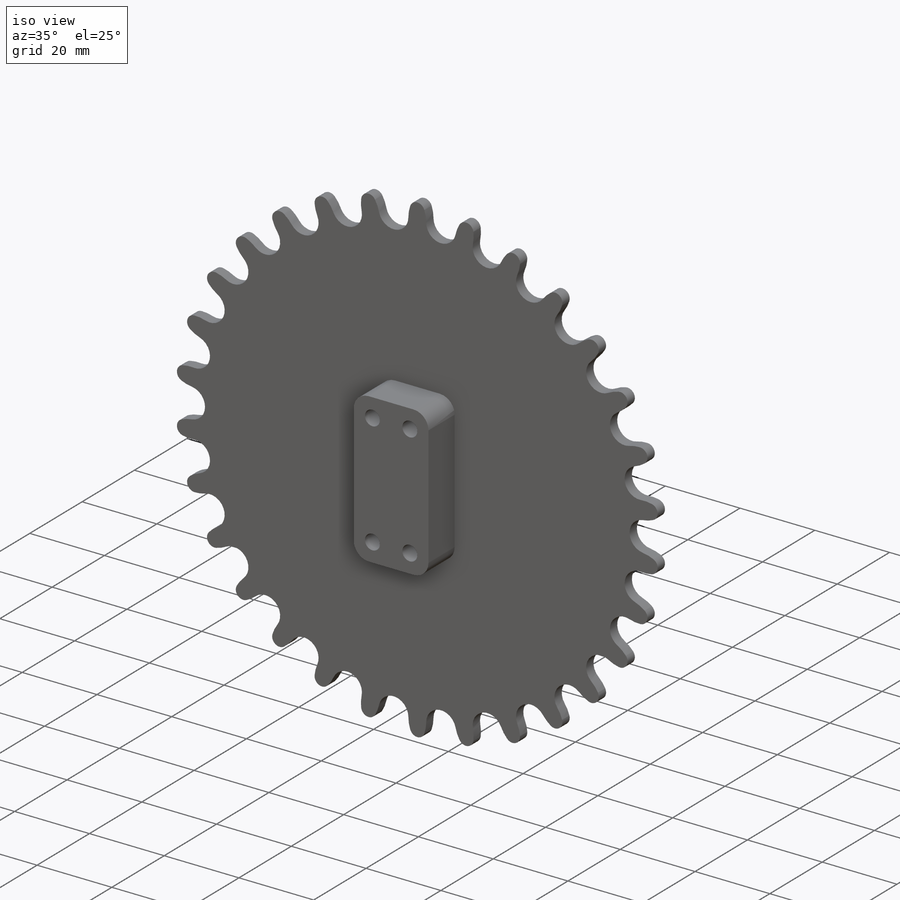
[diagram: iso view]
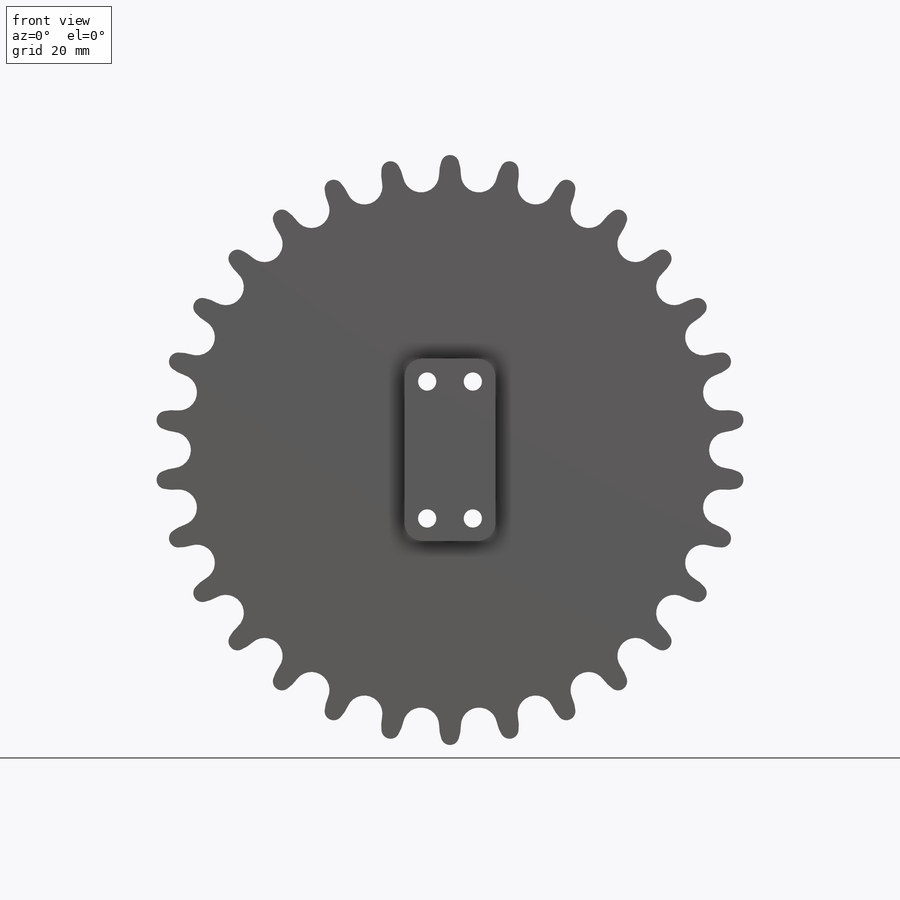
[diagram: front view]
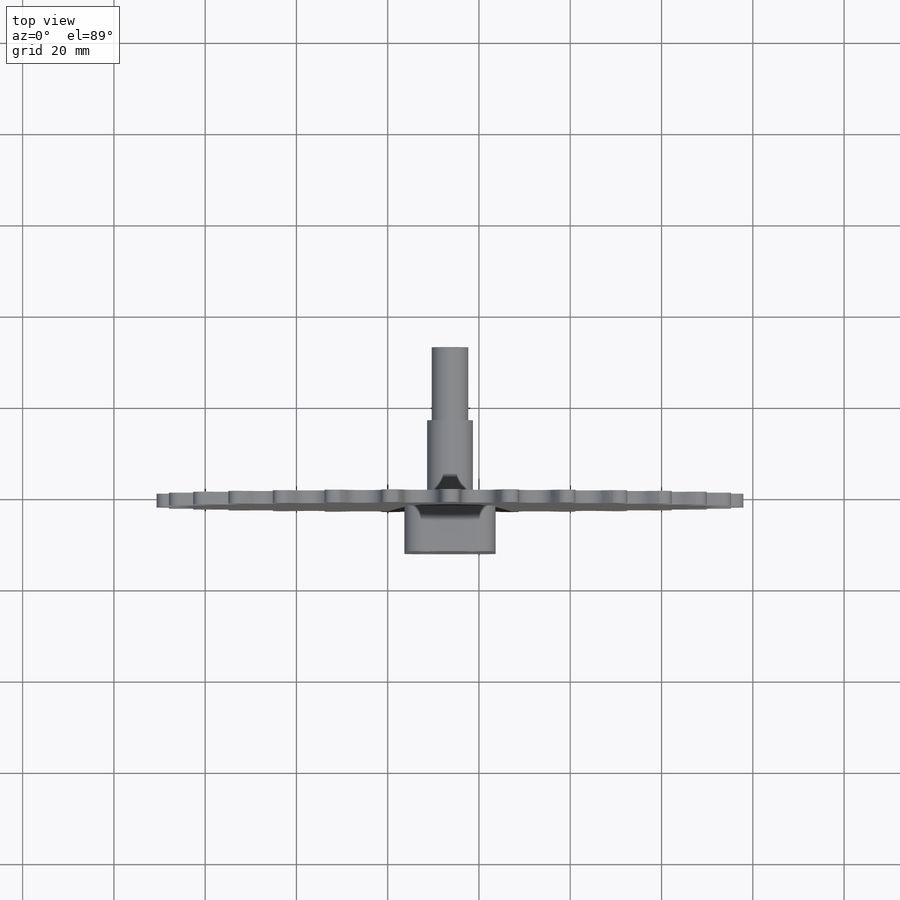
[diagram: top view]
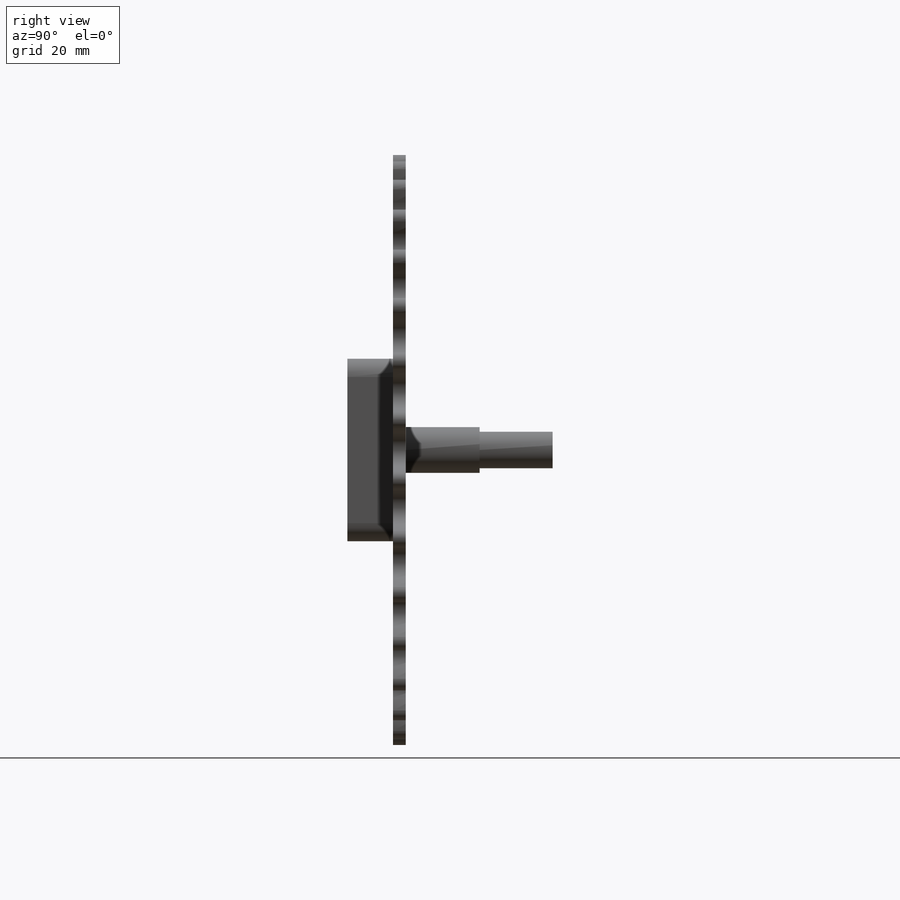
[diagram: right view]
SOLIDWORKS PART (.sldprt)
format: sldprt  version: not decoded by parser v0  size: 418,816 bytes
history: native  units: mm
features: sketch x5, extrude x4, material x1, cut_extrude x1 (+11 scaffold rows collapsed)
feature tree (22):
  scaffold x11  (default folders/planes/origin — collapsed)
  material  "Material <not specified>"
  sketch  "Sketch2"  dims[c1.D1=7.9375mm c1.D4=2.0mm c1.D2=12.7mm c1.D3=~36.98946mm c2.D3=12.0deg]
  extrude  "Boss-Extrude1"  Depth=2.794mm
  sketch  "Sketch3"  dims[c1.D1=15.0mm c1.D2=6.35mm c1.D3=4.0mm c2.D1=10.0mm c2.D2=20.0mm]
  sketch  "Sketch5"  dims[D1=8.0mm]
  extrude  "Boss-Extrude3"  Depth=32.206mm
  extrude  "Boss-Extrude4"  Depth=10mm
  sketch  "Sketch6"  dims[c1.D1=4.0mm c1.D2=5.0mm c1.D3=~6.403124mm c2.D3=90.0deg c3.D3=5.0mm]
  cut_extrude  "Cut-Extrude1"  [1 undecoded]
  sketch  "Sketch7"  dims[D1=10.0mm]
  extrude  "Boss-Extrude5"  Depth=19mm
decode coverage: 9 of 10 modeling features carry decoded parameters
note: ~ marks probable driven/reference dimensions
note: 1 parameter value undecoded
note: suppression state not decoded; provenance and decode notes live in map.json
